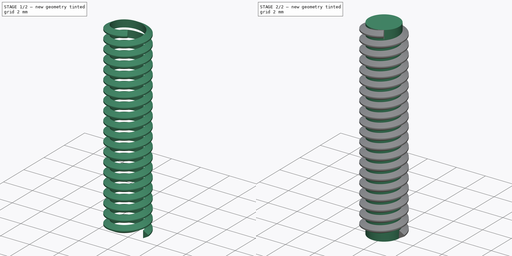
[diagram: build sequence overview — one tinted view per stage of 2, left to right]
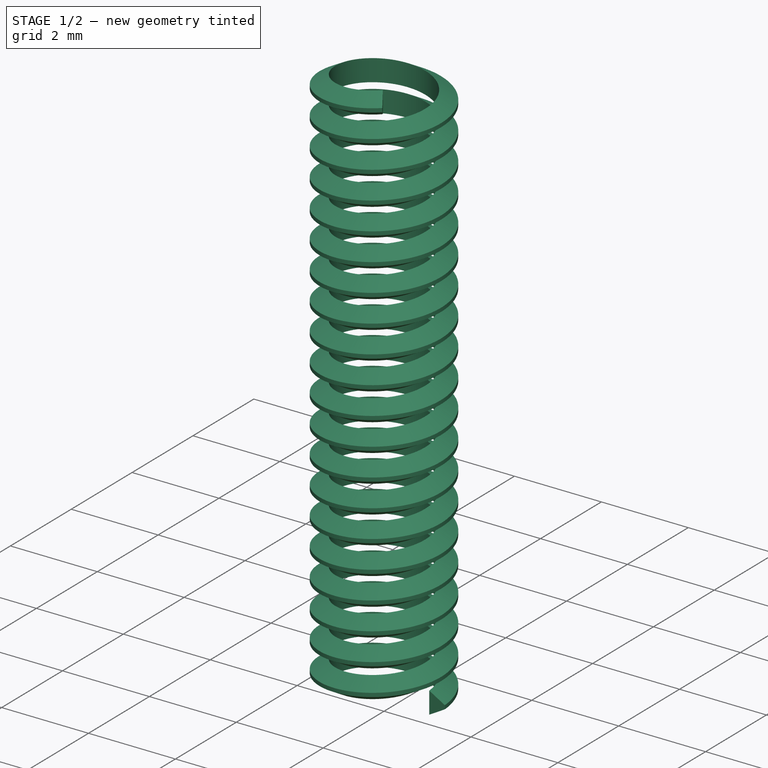
[diagram: stage 1 of 2 — iso view after this stage's code; geometry added in this stage tinted green]
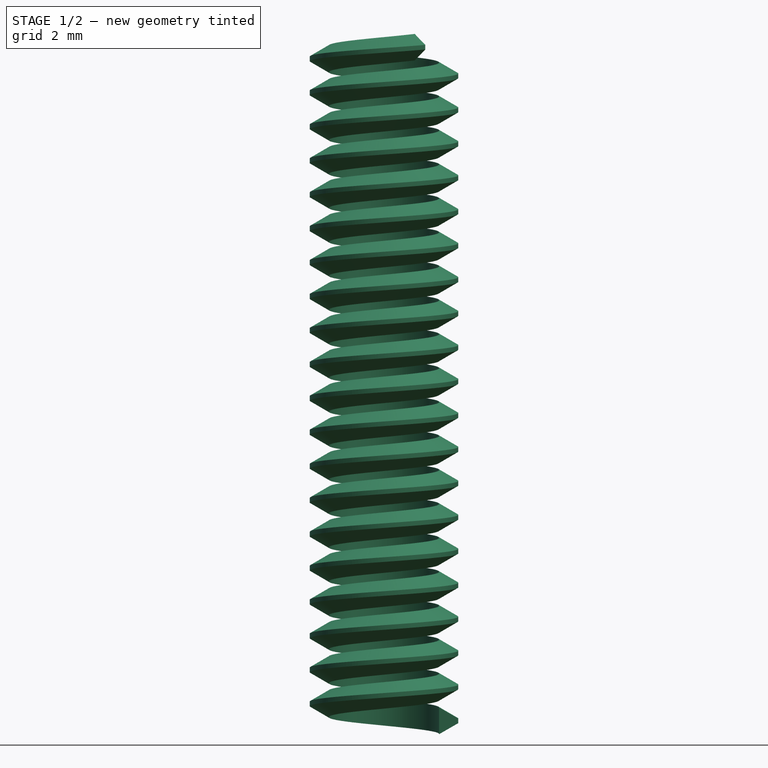
[diagram: stage 1 of 2 — front view after this stage's code; geometry added in this stage tinted green]
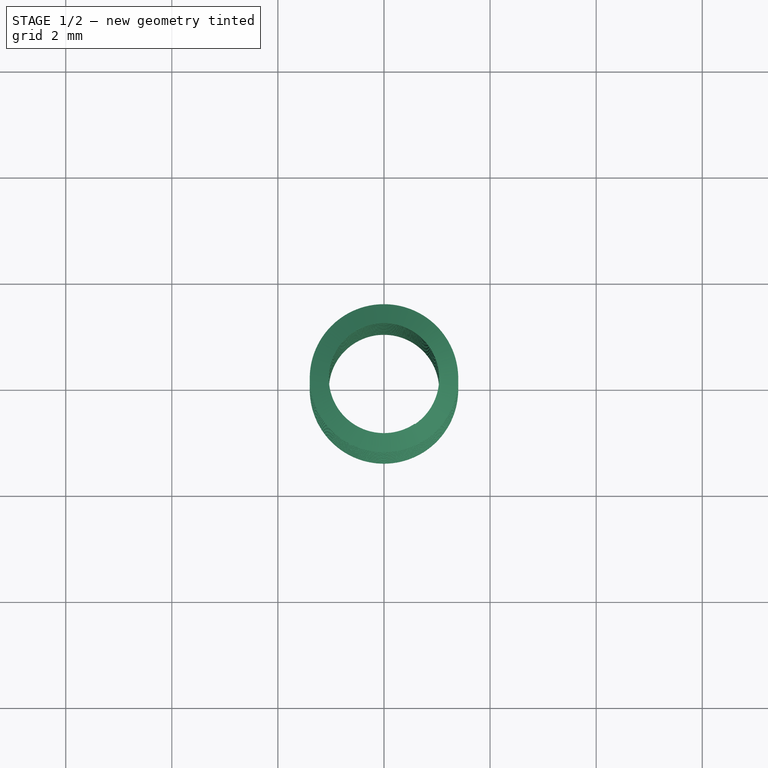
[diagram: stage 1 of 2 — top view after this stage's code; geometry added in this stage tinted green]
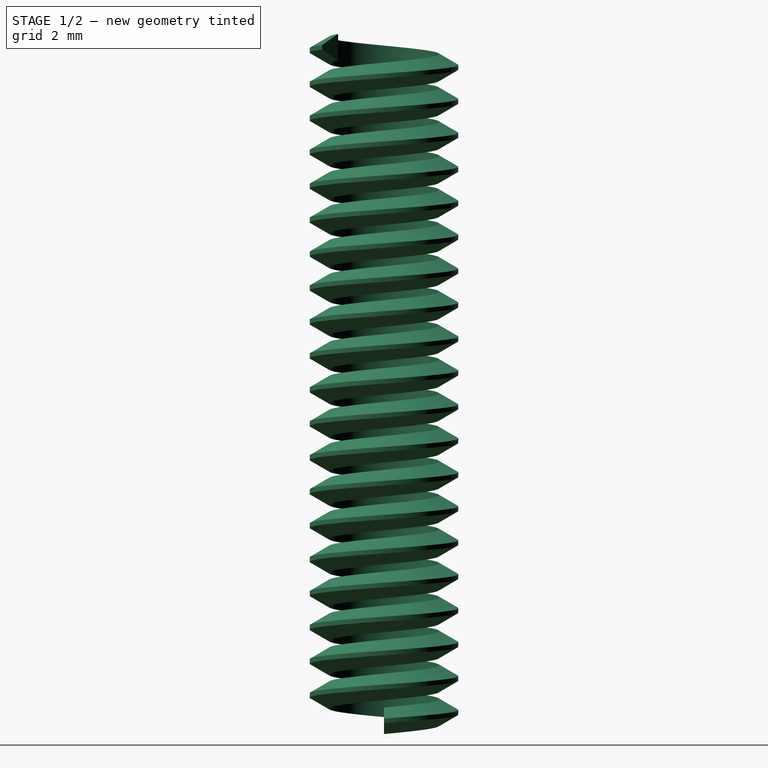
[diagram: stage 1 of 2 — right view after this stage's code; geometry added in this stage tinted green]
FCSTD DOCUMENT  (FreeCAD 0.19R23578 (Git))
Label: 4_40 _4
License: All rights reserved
LicenseURL: http://en.wikipedia.org/wiki/All_rights_reserved
objects: Part::Helix×1, Sketcher::SketchObject×1, PartDesign::AdditivePipe×1, PartDesign::AdditiveCylinder×1, PartDesign::Body×1
note: 7 computed .brp shape members not serialized (recipe doc carries the construction recipe); baked Part::Feature solids carry a one-line shape summary decoded from their .brp

FEATURE [Part::Helix] Helix
  Angle = 0
  AttacherType = Attacher::AttachEngine3D
  Height = 12.7
  LocalCoord = 0
  Pitch = 0.64
  Radius = 1.02
  Style = 1
FEATURE [Sketcher::SketchObject] Sketch
  MapMode = 5
  Placement = pos=(0,0,0) rot=(1,0,0;1.5708rad)
  Support = -> [XZ_Plane]
  sketch-geometry (6):
    g0: LineSegment StartX=1.04 StartY=0 StartZ=0 EndX=1.04 EndY=0.5 EndZ=0
    g1: LineSegment StartX=1.04 StartY=0 StartZ=0 EndX=1.04254 EndY=0 EndZ=0
    g2: LineSegment StartX=1.04 StartY=0.5 StartZ=0 EndX=1.04254 EndY=0.5 EndZ=0
    g3: LineSegment StartX=1.04254 StartY=0 StartZ=0 EndX=1.4 EndY=0.20638 EndZ=0
    g4: LineSegment StartX=1.04254 StartY=0.5 StartZ=0 EndX=1.4 EndY=0.29362 EndZ=0
    g5: LineSegment StartX=1.4 StartY=0.29362 StartZ=0 EndX=1.4 EndY=0.20638 EndZ=0
  constraints (18):
    c: PointOnObject(g0,g-1)
    c: Vertical(g0)
    c: Distance(g0) = 0.5
    c: DistanceX(g-1,g0) = 1.04
    c: Coincident(g1,g0)
    c: PointOnObject(g1,g-1)
    c: Distance(g1) = 0.00254
    c: Coincident(g2,g0)
    c: Horizontal(g2)
    c: Distance(g2) = 0.00254
    c: Coincident(g3,g1)
    c: Coincident(g4,g2)
    c: Vertical(g5)
    c: DistanceX(g0,g5) = 0.36
    c: Equal(g4,g3)
    c: Angle(g3,g0) = 1.0472
    c: Coincident(g4,g5)
    c: Coincident(g3,g5)
FEATURE [PartDesign::AdditivePipe] AdditivePipe
  AuxilleryCurvelinear = true
  AuxillerySpineTangent = false
  Binormal = (0,0,0)
  Mode = 2
  Placement = pos=(0,0,0) rot=(1,0,0;1.5708rad)
  Profile = -> Sketch
  Spine = -> Helix
  SpineTangent = false
  Transformation = 0
  Transition = 0
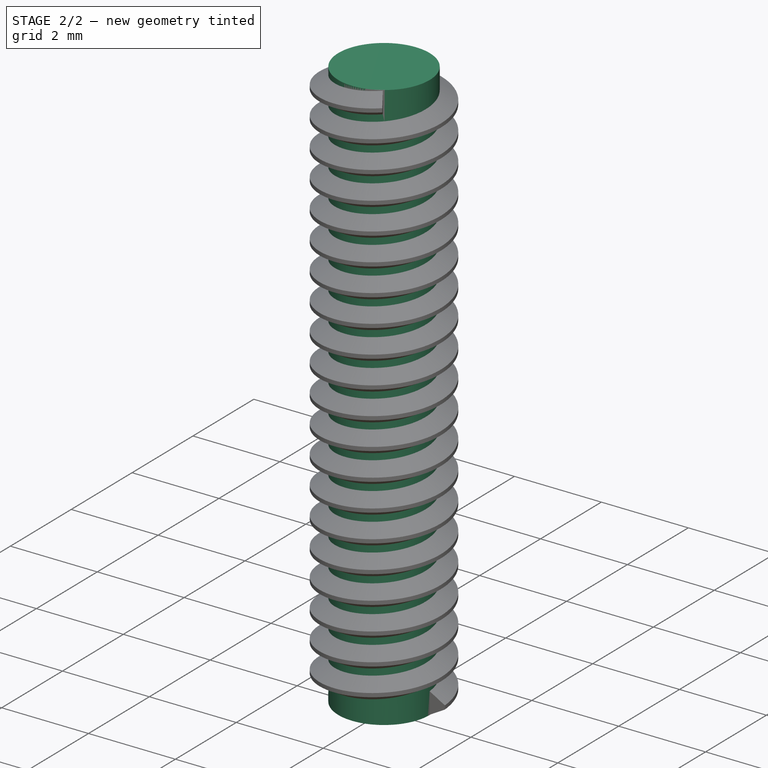
[diagram: stage 2 of 2 — iso view after this stage's code; geometry added in this stage tinted green]
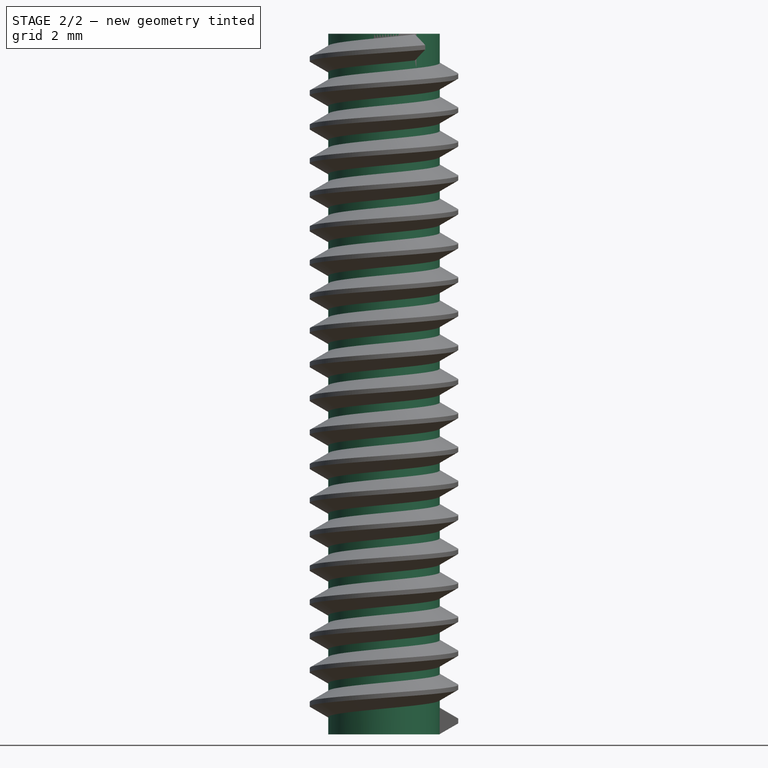
[diagram: stage 2 of 2 — front view after this stage's code; geometry added in this stage tinted green]
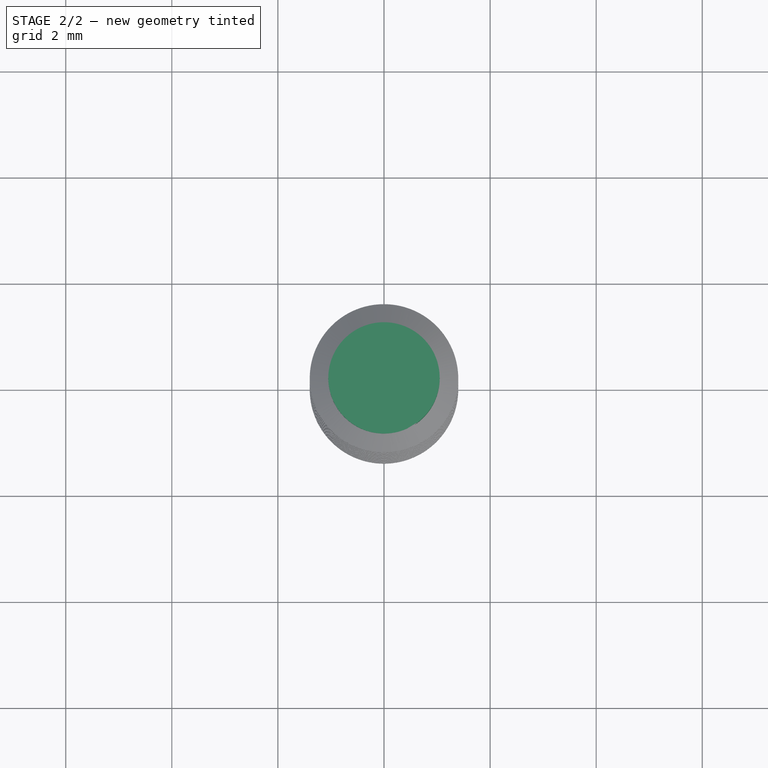
[diagram: stage 2 of 2 — top view after this stage's code; geometry added in this stage tinted green]
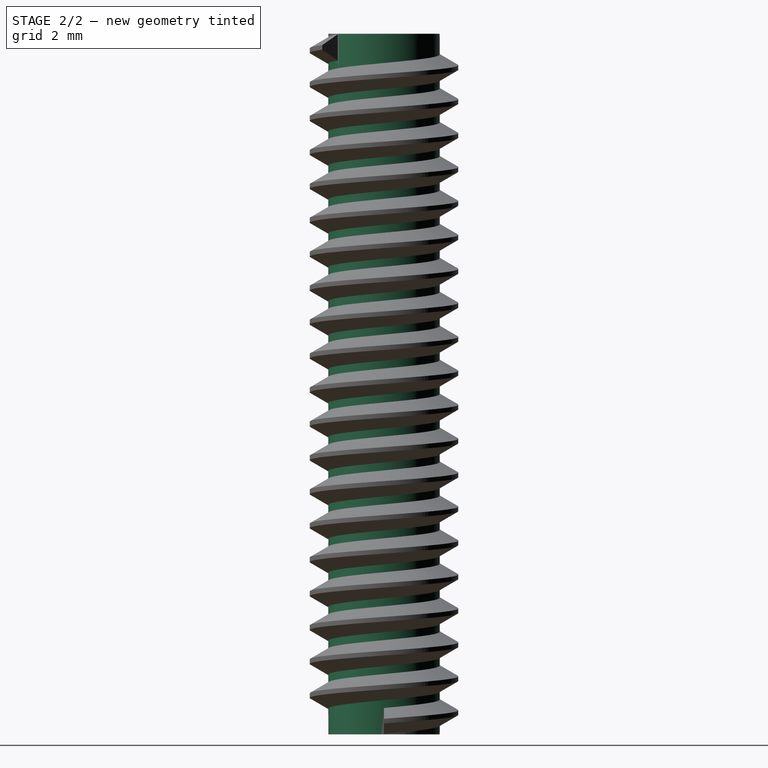
[diagram: stage 2 of 2 — right view after this stage's code; geometry added in this stage tinted green]
FEATURE [PartDesign::AdditiveCylinder] Cylinder
  Angle = 360
  AttacherType = Attacher::AttachEngine3D
  BaseFeature = -> AdditivePipe
  Height = 13.208
  Radius = 1.05
FEATURE [PartDesign::Body] Body
  Group = -> [Sketch,AdditivePipe,Cylinder]
  Origin = -> Origin
  Tip = -> Cylinder
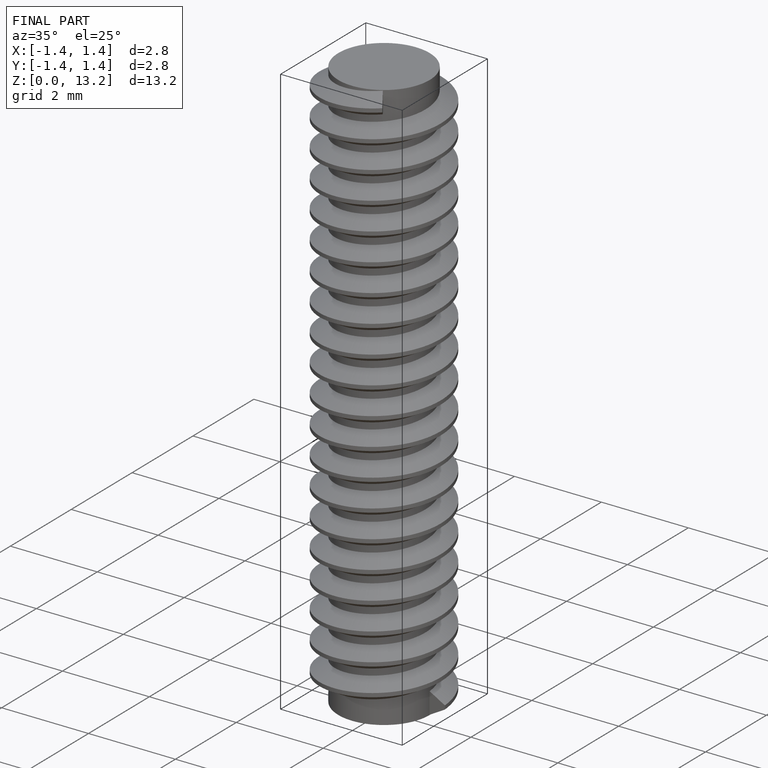
[diagram: finished part — iso view with bounding-box wireframe]
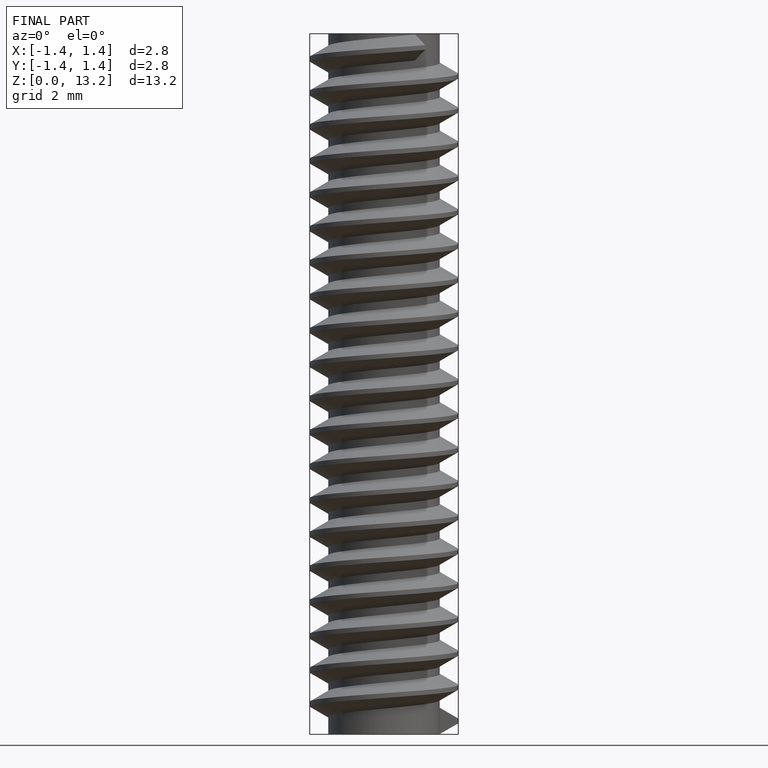
[diagram: finished part — front view with bounding-box wireframe]
